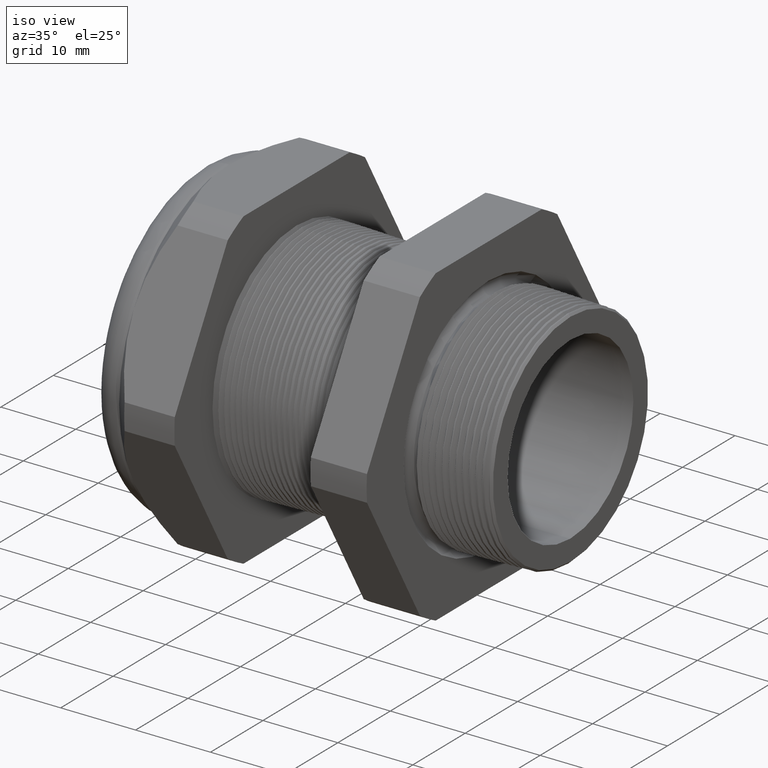
[diagram: clean part render]
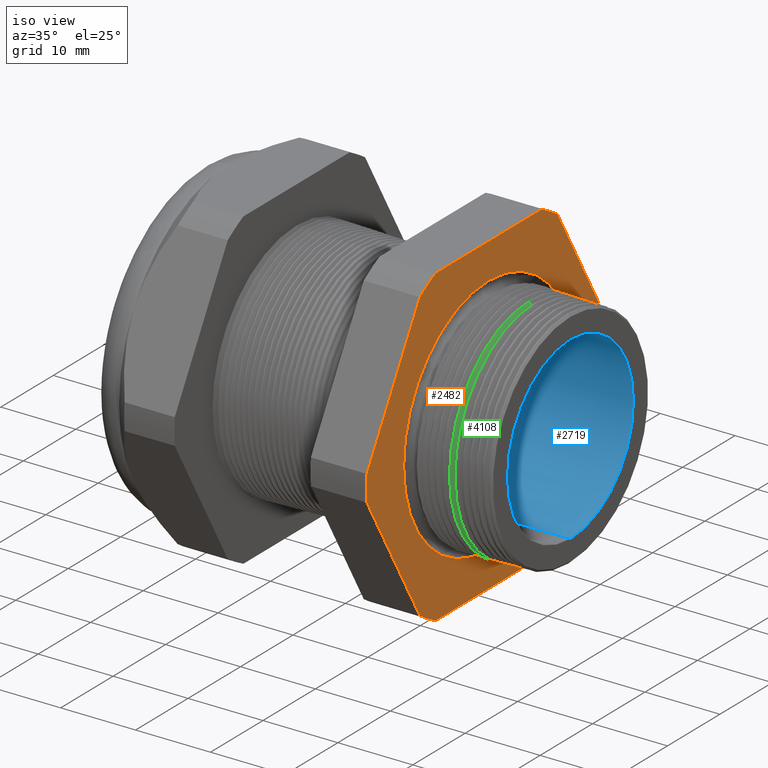
[diagram: same view with three faces highlighted in distinct colors, each labeled with its STEP entity id]
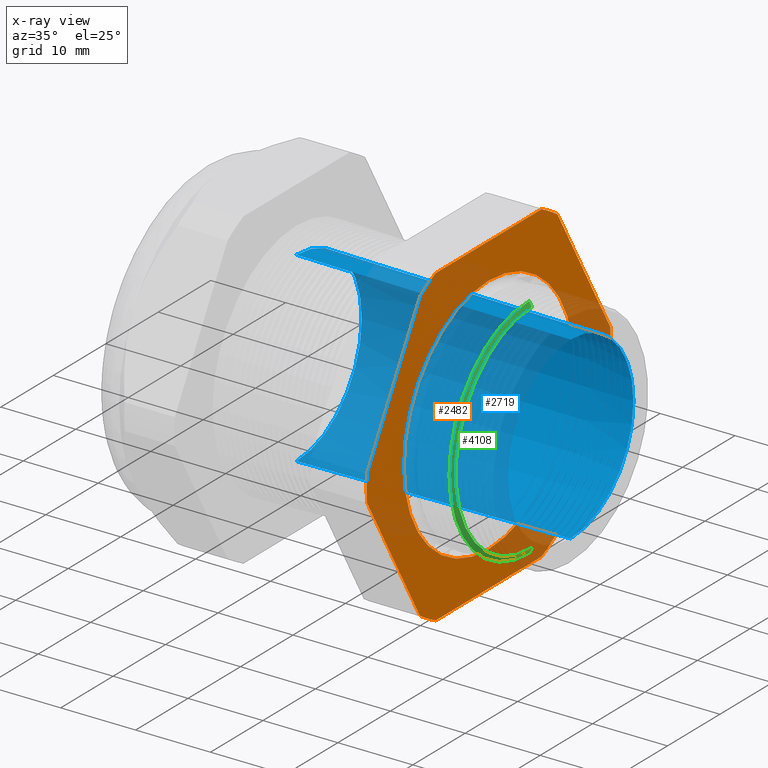
[diagram: x-ray of the same camera — body ghosted, the three highlighted faces saturated]
A machine part, iso view with three faces highlighted in distinct colors.
The next image is the same camera in x-ray (body ghosted, the three faces saturated) — at least one of them is partly hidden behind the body in this view.
Their STEP definitions:

[orange] entity #2482 — the highlighted planar face has unit normal (1, 0, 0).
#2092 = VERTEX_POINT ( 'NONE', #4909 ) ;
#2208 = EDGE_CURVE ( 'NONE', #2210, #2092, #5137, .T. ) ;
#2210 = VERTEX_POINT ( 'NONE', #5133 ) ;
#2472 = ORIENTED_EDGE ( 'NONE', *, *, #2502, .T. ) ;
#2473 = VERTEX_POINT ( 'NONE', #5614 ) ;
#2474 = VERTEX_POINT ( 'NONE', #5672 ) ;
#2475 = EDGE_CURVE ( 'NONE', #2474, #2473, #5671, .T. ) ;
#2476 = ORIENTED_EDGE ( 'NONE', *, *, #2475, .T. ) ;
#2477 = EDGE_LOOP ( 'NONE', ( #2476, #2472, #2501, #2499, #2492, #2491, #2489, #2583, #2519, #2513, #2516, #2505 ) ) ;
#2478 = EDGE_LOOP ( 'NONE', ( #2480, #2481 ) ) ;
#2479 = EDGE_CURVE ( 'NONE', #2092, #2210, #5667, .T. ) ;
#2480 = ORIENTED_EDGE ( 'NONE', *, *, #2479, .F. ) ;
#2481 = ORIENTED_EDGE ( 'NONE', *, *, #2208, .F. ) ;
#2482 = ADVANCED_FACE ( 'NONE', ( #5662, #5661 ), #5659, .T. ) ;
#2486 = EDGE_CURVE ( 'NONE', #2494, #2487, #5650, .T. ) ;
#2487 = VERTEX_POINT ( 'NONE', #5645 ) ;
#2489 = ORIENTED_EDGE ( 'NONE', *, *, #2611, .T. ) ;
#2491 = ORIENTED_EDGE ( 'NONE', *, *, #2486, .T. ) ;
#2492 = ORIENTED_EDGE ( 'NONE', *, *, #2493, .T. ) ;
#2493 = EDGE_CURVE ( 'NONE', #2495, #2494, #5699, .T. ) ;
#2494 = VERTEX_POINT ( 'NONE', #5695 ) ;
#2495 = VERTEX_POINT ( 'NONE', #5694 ) ;
#2496 = EDGE_CURVE ( 'NONE', #2498, #2495, #5692, .T. ) ;
#2497 = EDGE_CURVE ( 'NONE', #2500, #2498, #5693, .T. ) ;
#2498 = VERTEX_POINT ( 'NONE', #5684 ) ;
#2499 = ORIENTED_EDGE ( 'NONE', *, *, #2496, .T. ) ;
#2500 = VERTEX_POINT ( 'NONE', #5683 ) ;
#2501 = ORIENTED_EDGE ( 'NONE', *, *, #2497, .T. ) ;
#2502 = EDGE_CURVE ( 'NONE', #2473, #2500, #5682, .T. ) ;
#2503 = EDGE_CURVE ( 'NONE', #2515, #2504, #5676, .T. ) ;
#2504 = VERTEX_POINT ( 'NONE', #5738 ) ;
#2505 = ORIENTED_EDGE ( 'NONE', *, *, #2712, .T. ) ;
#2513 = ORIENTED_EDGE ( 'NONE', *, *, #2514, .T. ) ;
#2514 = EDGE_CURVE ( 'NONE', #2518, #2515, #5728, .T. ) ;
#2515 = VERTEX_POINT ( 'NONE', #5723 ) ;
#2516 = ORIENTED_EDGE ( 'NONE', *, *, #2503, .T. ) ;
#2518 = VERTEX_POINT ( 'NONE', #5715 ) ;
#2519 = ORIENTED_EDGE ( 'NONE', *, *, #2520, .T. ) ;
#2520 = EDGE_CURVE ( 'NONE', #2521, #2518, #5713, .T. ) ;
#2521 = VERTEX_POINT ( 'NONE', #5709 ) ;
#2580 = VERTEX_POINT ( 'NONE', #5874 ) ;
#2582 = EDGE_CURVE ( 'NONE', #2580, #2521, #5872, .T. ) ;
#2583 = ORIENTED_EDGE ( 'NONE', *, *, #2582, .T. ) ;
#2611 = EDGE_CURVE ( 'NONE', #2487, #2580, #5956, .T. ) ;
#2712 = EDGE_CURVE ( 'NONE', #2504, #2474, #6119, .T. ) ;
#4909 = CARTESIAN_POINT ( 'NONE',  ( -0.3100000000000000000, 0.0000000000000000000, -0.6381849878321532700 ) ) ;
#5133 = CARTESIAN_POINT ( 'NONE',  ( -0.3100000000000000000, 7.815512026125390700E-017, 0.6381849878321532700 ) ) ;
#5134 = DIRECTION ( 'NONE',  ( 0.0000000000000000000, 0.0000000000000000000, -1.000000000000000000 ) ) ;
#5135 = DIRECTION ( 'NONE',  ( 1.000000000000000000, 0.0000000000000000000, 0.0000000000000000000 ) ) ;
#5136 = AXIS2_PLACEMENT_3D ( 'NONE', #5143, #5135, #5134 ) ;
#5137 = CIRCLE ( 'NONE', #5136, 0.6381849878321532700 ) ;
#5143 = CARTESIAN_POINT ( 'NONE',  ( -0.3100000000000000000, 0.0000000000000000000, 0.0000000000000000000 ) ) ;
#5614 = CARTESIAN_POINT ( 'NONE',  ( -0.3100000000000000000, 0.9132000843845193800, -0.06829105636982713000 ) ) ;
#5645 = CARTESIAN_POINT ( 'NONE',  ( -0.3099999999999998300, -0.5157418318598047100, 0.7567089436301734900 ) ) ;
#5646 = DIRECTION ( 'NONE',  ( 0.0000000000000000000, 0.0000000000000000000, -1.000000000000000000 ) ) ;
#5647 = DIRECTION ( 'NONE',  ( 1.000000000000000000, 0.0000000000000000000, 0.0000000000000000000 ) ) ;
#5648 = CARTESIAN_POINT ( 'NONE',  ( -0.3100000000000000000, 0.0000000000000000000, 0.0000000000000000000 ) ) ;
#5649 = AXIS2_PLACEMENT_3D ( 'NONE', #5648, #5647, #5646 ) ;
#5650 = CIRCLE ( 'NONE', #5649, 0.9157500000000000600 ) ;
#5655 = DIRECTION ( 'NONE',  ( 0.0000000000000000000, 0.0000000000000000000, -1.000000000000000000 ) ) ;
#5656 = DIRECTION ( 'NONE',  ( 1.000000000000000000, 0.0000000000000000000, 0.0000000000000000000 ) ) ;
#5657 = CARTESIAN_POINT ( 'NONE',  ( -0.3100000000000000000, 1.649999999999999900, 0.0000000000000000000 ) ) ;
#5658 = AXIS2_PLACEMENT_3D ( 'NONE', #5657, #5656, #5655 ) ;
#5659 = PLANE ( 'NONE',  #5658 ) ;
#5661 = FACE_OUTER_BOUND ( 'NONE', #2477, .T. ) ;
#5662 = FACE_BOUND ( 'NONE', #2478, .T. ) ;
#5663 = DIRECTION ( 'NONE',  ( 0.0000000000000000000, 0.0000000000000000000, -1.000000000000000000 ) ) ;
#5664 = DIRECTION ( 'NONE',  ( 1.000000000000000000, 0.0000000000000000000, 0.0000000000000000000 ) ) ;
#5665 = CARTESIAN_POINT ( 'NONE',  ( -0.3100000000000000000, 0.0000000000000000000, 0.0000000000000000000 ) ) ;
#5666 = AXIS2_PLACEMENT_3D ( 'NONE', #5665, #5664, #5663 ) ;
#5667 = CIRCLE ( 'NONE', #5666, 0.6381849878321532700 ) ;
#5668 = DIRECTION ( 'NONE',  ( 0.0000000000000000000, 0.4999999999999998300, 0.8660254037844388200 ) ) ;
#5669 = VECTOR ( 'NONE', #5668, 39.37007874015748100 ) ;
#5670 = CARTESIAN_POINT ( 'NONE',  ( -0.3100000000000000000, 1.126970958122162100, 0.3019709581221616300 ) ) ;
#5671 = LINE ( 'NONE', #5670, #5669 ) ;
#5672 = CARTESIAN_POINT ( 'NONE',  ( -0.3099999999999998300, 0.5157418318598052700, -0.7567089436301730500 ) ) ;
#5673 = DIRECTION ( 'NONE',  ( 0.0000000000000000000, 1.000000000000000000, 0.0000000000000000000 ) ) ;
#5674 = VECTOR ( 'NONE', #5673, 39.37007874015748100 ) ;
#5675 = CARTESIAN_POINT ( 'NONE',  ( -0.3100000000000000000, 1.649999999999999900, -0.8250000000000000700 ) ) ;
#5676 = LINE ( 'NONE', #5675, #5674 ) ;
#5677 = DIRECTION ( 'NONE',  ( 0.0000000000000000000, 0.0000000000000000000, -1.000000000000000000 ) ) ;
#5679 = DIRECTION ( 'NONE',  ( 1.000000000000000000, 0.0000000000000000000, 0.0000000000000000000 ) ) ;
#5680 = CARTESIAN_POINT ( 'NONE',  ( -0.3100000000000000000, 0.0000000000000000000, 0.0000000000000000000 ) ) ;
#5681 = AXIS2_PLACEMENT_3D ( 'NONE', #5680, #5679, #5677 ) ;
#5682 = CIRCLE ( 'NONE', #5681, 0.9157499999999999500 ) ;
#5683 = CARTESIAN_POINT ( 'NONE',  ( -0.3099999999999998300, 0.9132000843845192700, 0.06829105636982749100 ) ) ;
#5684 = CARTESIAN_POINT ( 'NONE',  ( -0.3099999999999998300, 0.5157418318598050400, 0.7567089436301731600 ) ) ;
#5685 = DIRECTION ( 'NONE',  ( 0.0000000000000000000, -0.5000000000000000000, 0.8660254037844386000 ) ) ;
#5686 = VECTOR ( 'NONE', #5685, 39.37007874015748100 ) ;
#5687 = CARTESIAN_POINT ( 'NONE',  ( -0.3100000000000000000, 1.126970958122162300, -0.3019709581221616300 ) ) ;
#5688 = DIRECTION ( 'NONE',  ( 0.0000000000000000000, 0.0000000000000000000, -1.000000000000000000 ) ) ;
#5689 = DIRECTION ( 'NONE',  ( 1.000000000000000000, 0.0000000000000000000, 0.0000000000000000000 ) ) ;
#5690 = CARTESIAN_POINT ( 'NONE',  ( -0.3100000000000000000, 0.0000000000000000000, 0.0000000000000000000 ) ) ;
#5691 = AXIS2_PLACEMENT_3D ( 'NONE', #5690, #5689, #5688 ) ;
#5692 = CIRCLE ( 'NONE', #5691, 0.9157500000000000600 ) ;
#5693 = LINE ( 'NONE', #5687, #5686 ) ;
#5694 = CARTESIAN_POINT ( 'NONE',  ( -0.3099999999999998300, 0.3974582525247153400, 0.8249999999999998400 ) ) ;
#5695 = CARTESIAN_POINT ( 'NONE',  ( -0.3099999999999998300, -0.3974582525247157800, 0.8249999999999995100 ) ) ;
#5696 = DIRECTION ( 'NONE',  ( 0.0000000000000000000, -1.000000000000000000, 0.0000000000000000000 ) ) ;
#5697 = VECTOR ( 'NONE', #5696, 39.37007874015748100 ) ;
#5698 = CARTESIAN_POINT ( 'NONE',  ( -0.3100000000000000000, 1.649999999999999900, 0.8249999999999998400 ) ) ;
#5699 = LINE ( 'NONE', #5698, #5697 ) ;
#5709 = CARTESIAN_POINT ( 'NONE',  ( -0.3099999999999998300, -0.9132000843845193800, -0.06829105636982590900 ) ) ;
#5710 = DIRECTION ( 'NONE',  ( 0.0000000000000000000, 0.4999999999999998300, -0.8660254037844386000 ) ) ;
#5711 = VECTOR ( 'NONE', #5710, 39.37007874015748900 ) ;
#5712 = CARTESIAN_POINT ( 'NONE',  ( -0.3100000000000000000, -0.3019709581221620100, -1.126970958122161400 ) ) ;
#5713 = LINE ( 'NONE', #5712, #5711 ) ;
#5715 = CARTESIAN_POINT ( 'NONE',  ( -0.3099999999999998300, -0.5157418318598037100, -0.7567089436301741600 ) ) ;
#5723 = CARTESIAN_POINT ( 'NONE',  ( -0.3099999999999998300, -0.3974582525247148400, -0.8250000000000000700 ) ) ;
#5724 = DIRECTION ( 'NONE',  ( 0.0000000000000000000, 0.0000000000000000000, -1.000000000000000000 ) ) ;
#5725 = DIRECTION ( 'NONE',  ( 1.000000000000000000, 0.0000000000000000000, 0.0000000000000000000 ) ) ;
#5726 = CARTESIAN_POINT ( 'NONE',  ( -0.3100000000000000000, 0.0000000000000000000, 0.0000000000000000000 ) ) ;
#5727 = AXIS2_PLACEMENT_3D ( 'NONE', #5726, #5725, #5724 ) ;
#5728 = CIRCLE ( 'NONE', #5727, 0.9157500000000000600 ) ;
#5738 = CARTESIAN_POINT ( 'NONE',  ( -0.3099999999999998300, 0.3974582525247150100, -0.8249999999999999600 ) ) ;
#5868 = DIRECTION ( 'NONE',  ( 0.0000000000000000000, 0.0000000000000000000, -1.000000000000000000 ) ) ;
#5869 = DIRECTION ( 'NONE',  ( 1.000000000000000000, 0.0000000000000000000, 0.0000000000000000000 ) ) ;
#5870 = CARTESIAN_POINT ( 'NONE',  ( -0.3100000000000000000, 0.0000000000000000000, 0.0000000000000000000 ) ) ;
#5871 = AXIS2_PLACEMENT_3D ( 'NONE', #5870, #5869, #5868 ) ;
#5872 = CIRCLE ( 'NONE', #5871, 0.9157500000000000600 ) ;
#5874 = CARTESIAN_POINT ( 'NONE',  ( -0.3099999999999998300, -0.9132000843845194900, 0.06829105636982570100 ) ) ;
#5953 = DIRECTION ( 'NONE',  ( 0.0000000000000000000, -0.4999999999999998300, -0.8660254037844388200 ) ) ;
#5954 = VECTOR ( 'NONE', #5953, 39.37007874015748100 ) ;
#5955 = CARTESIAN_POINT ( 'NONE',  ( -0.3100000000000000000, -0.3019709581221622900, 1.126970958122161400 ) ) ;
#5956 = LINE ( 'NONE', #5955, #5954 ) ;
#6116 = DIRECTION ( 'NONE',  ( 0.0000000000000000000, 0.0000000000000000000, -1.000000000000000000 ) ) ;
#6117 = DIRECTION ( 'NONE',  ( 1.000000000000000000, 0.0000000000000000000, 0.0000000000000000000 ) ) ;
#6118 = AXIS2_PLACEMENT_3D ( 'NONE', #6123, #6117, #6116 ) ;
#6119 = CIRCLE ( 'NONE', #6118, 0.9157500000000000600 ) ;
#6123 = CARTESIAN_POINT ( 'NONE',  ( -0.3100000000000000000, 0.0000000000000000000, 0.0000000000000000000 ) ) ;

[blue] entity #2719 — the highlighted conical surface has half-angle 0.705 deg.
#91 = CARTESIAN_POINT ( 'NONE',  ( 0.1200000000000000400, 0.0000000000000000000, 0.4722840254060285400 ) ) ;
#129 = CARTESIAN_POINT ( 'NONE',  ( -1.320314960629921200, 6.000769315822029800E-017, -0.4899999999999999900 ) ) ;
#130 = CARTESIAN_POINT ( 'NONE',  ( -1.320314960629921200, 0.0000000000000000000, 0.4899999999999999900 ) ) ;
#148 = CARTESIAN_POINT ( 'NONE',  ( 0.1200000000000000400, 5.892290257920615800E-017, -0.4722840254060285400 ) ) ;
#155 = DIRECTION ( 'NONE',  ( -0.9999243627234416500, 0.0000000000000000000, 0.01229913948693142600 ) ) ;
#156 = VECTOR ( 'NONE', #155, 39.37007874015748900 ) ;
#157 = CARTESIAN_POINT ( 'NONE',  ( -1.320314960629921200, 0.0000000000000000000, 0.4899999999999999900 ) ) ;
#158 = LINE ( 'NONE', #157, #156 ) ;
#159 = DIRECTION ( 'NONE',  ( -0.9999243627234416500, 1.506210180493738900E-018, -0.01229913948693142600 ) ) ;
#160 = VECTOR ( 'NONE', #159, 39.37007874015748900 ) ;
#161 = CARTESIAN_POINT ( 'NONE',  ( -1.320314960629921200, 6.000769315822029800E-017, -0.4899999999999999900 ) ) ;
#162 = LINE ( 'NONE', #161, #160 ) ;
#2713 = ORIENTED_EDGE ( 'NONE', *, *, #2714, .F. ) ;
#2714 = EDGE_CURVE ( 'NONE', #3391, #3389, #6115, .T. ) ;
#2715 = ORIENTED_EDGE ( 'NONE', *, *, #3410, .T. ) ;
#2716 = ORIENTED_EDGE ( 'NONE', *, *, #3409, .F. ) ;
#2717 = ORIENTED_EDGE ( 'NONE', *, *, #2720, .T. ) ;
#2718 = EDGE_LOOP ( 'NONE', ( #2716, #2717, #2715, #2713 ) ) ;
#2719 = ADVANCED_FACE ( 'NONE', ( #6174 ), #6167, .F. ) ;
#2720 = EDGE_CURVE ( 'NONE', #3378, #3376, #6163, .T. ) ;
#3376 = VERTEX_POINT ( 'NONE', #91 ) ;
#3378 = VERTEX_POINT ( 'NONE', #148 ) ;
#3389 = VERTEX_POINT ( 'NONE', #130 ) ;
#3391 = VERTEX_POINT ( 'NONE', #129 ) ;
#3409 = EDGE_CURVE ( 'NONE', #3378, #3391, #162, .T. ) ;
#3410 = EDGE_CURVE ( 'NONE', #3376, #3389, #158, .T. ) ;
#6115 = CIRCLE ( 'NONE', #6173, 0.4899999999999999900 ) ;
#6160 = DIRECTION ( 'NONE',  ( 0.0000000000000000000, 0.0000000000000000000, -1.000000000000000000 ) ) ;
#6161 = DIRECTION ( 'NONE',  ( 1.000000000000000000, 0.0000000000000000000, 0.0000000000000000000 ) ) ;
#6162 = AXIS2_PLACEMENT_3D ( 'NONE', #6168, #6161, #6160 ) ;
#6163 = CIRCLE ( 'NONE', #6162, 0.4722840254060285400 ) ;
#6164 = DIRECTION ( 'NONE',  ( 0.0000000000000000000, 0.0000000000000000000, 1.000000000000000000 ) ) ;
#6165 = DIRECTION ( 'NONE',  ( -1.000000000000000000, 0.0000000000000000000, 0.0000000000000000000 ) ) ;
#6166 = AXIS2_PLACEMENT_3D ( 'NONE', #6169, #6165, #6164 ) ;
#6167 = CONICAL_SURFACE ( 'NONE', #6166, 0.4899999999999999900, 0.01229944958745177900 ) ;
#6168 = CARTESIAN_POINT ( 'NONE',  ( 0.1200000000000000400, 0.0000000000000000000, 0.0000000000000000000 ) ) ;
#6169 = CARTESIAN_POINT ( 'NONE',  ( -1.320314960629921200, 0.0000000000000000000, 0.0000000000000000000 ) ) ;
#6170 = DIRECTION ( 'NONE',  ( 0.0000000000000000000, 0.0000000000000000000, -1.000000000000000000 ) ) ;
#6171 = DIRECTION ( 'NONE',  ( 1.000000000000000000, 0.0000000000000000000, 0.0000000000000000000 ) ) ;
#6172 = CARTESIAN_POINT ( 'NONE',  ( -1.320314960629921200, 0.0000000000000000000, 0.0000000000000000000 ) ) ;
#6173 = AXIS2_PLACEMENT_3D ( 'NONE', #6172, #6171, #6170 ) ;
#6174 = FACE_OUTER_BOUND ( 'NONE', #2718, .T. ) ;

[green] entity #4108 — the highlighted conical surface has half-angle 61.5 deg.
#1220 = DIRECTION ( 'NONE',  ( 0.0000000000000000000, 0.0000000000000000000, -1.000000000000000000 ) ) ;
#1221 = DIRECTION ( 'NONE',  ( 1.000000000000000000, 0.0000000000000000000, 0.0000000000000000000 ) ) ;
#1222 = CARTESIAN_POINT ( 'NONE',  ( -0.08347073567907506400, 0.0000000000000000000, 0.0000000000000000000 ) ) ;
#1223 = AXIS2_PLACEMENT_3D ( 'NONE', #1222, #1221, #1220 ) ;
#1224 = DIRECTION ( 'NONE',  ( 0.0000000000000000000, 0.0000000000000000000, 1.000000000000000000 ) ) ;
#1225 = DIRECTION ( 'NONE',  ( -1.000000000000000000, 0.0000000000000000000, 0.0000000000000000000 ) ) ;
#1226 = CARTESIAN_POINT ( 'NONE',  ( -0.09999999999999982500, 0.0000000000000000000, 0.0000000000000000000 ) ) ;
#1227 = AXIS2_PLACEMENT_3D ( 'NONE', #1226, #1225, #1224 ) ;
#1228 = CIRCLE ( 'NONE', #1223, 0.5731008538869457600 ) ;
#1230 = CONICAL_SURFACE ( 'NONE', #1227, 0.6035439716807757800, 1.073377489976501800 ) ;
#1231 = FACE_OUTER_BOUND ( 'NONE', #4109, .T. ) ;
#1743 = EDGE_CURVE ( 'NONE', #1854, #1754, #4257, .T. ) ;
#1748 = VERTEX_POINT ( 'NONE', #4305 ) ;
#1750 = EDGE_CURVE ( 'NONE', #1855, #1748, #4304, .T. ) ;
#1754 = VERTEX_POINT ( 'NONE', #4299 ) ;
#1854 = VERTEX_POINT ( 'NONE', #4486 ) ;
#1855 = VERTEX_POINT ( 'NONE', #4485 ) ;
#3238 = EDGE_CURVE ( 'NONE', #1748, #1754, #7182, .T. ) ;
#4039 = ORIENTED_EDGE ( 'NONE', *, *, #3238, .T. ) ;
#4108 = ADVANCED_FACE ( 'NONE', ( #1231 ), #1230, .T. ) ;
#4109 = EDGE_LOOP ( 'NONE', ( #4110, #4111, #4113, #4039 ) ) ;
#4110 = ORIENTED_EDGE ( 'NONE', *, *, #1743, .F. ) ;
#4111 = ORIENTED_EDGE ( 'NONE', *, *, #4112, .F. ) ;
#4112 = EDGE_CURVE ( 'NONE', #1855, #1854, #1228, .T. ) ;
#4113 = ORIENTED_EDGE ( 'NONE', *, *, #1750, .T. ) ;
#4250 = DIRECTION ( 'NONE',  ( -0.4771587602596179000, 1.076240564057388100E-016, -0.8788171126619600500 ) ) ;
#4251 = VECTOR ( 'NONE', #4250, 39.37007874015748900 ) ;
#4252 = CARTESIAN_POINT ( 'NONE',  ( -0.09999999999999982500, 7.391281930635429700E-017, -0.6035439716807757800 ) ) ;
#4257 = LINE ( 'NONE', #4252, #4251 ) ;
#4299 = CARTESIAN_POINT ( 'NONE',  ( -0.09697120011612862800, 7.323955048079450300E-017, -0.5979656162350404100 ) ) ;
#4301 = DIRECTION ( 'NONE',  ( -0.4771587602596179000, 0.0000000000000000000, 0.8788171126619600500 ) ) ;
#4302 = VECTOR ( 'NONE', #4301, 39.37007874015748900 ) ;
#4303 = CARTESIAN_POINT ( 'NONE',  ( -0.09999999999999982500, 0.0000000000000000000, 0.6035439716807757800 ) ) ;
#4304 = LINE ( 'NONE', #4303, #4302 ) ;
#4305 = CARTESIAN_POINT ( 'NONE',  ( -0.09697120011612862800, 0.0000000000000000000, 0.5979656162350404100 ) ) ;
#4485 = CARTESIAN_POINT ( 'NONE',  ( -0.08347073567907506400, 0.0000000000000000000, 0.5731008538869457600 ) ) ;
#4486 = CARTESIAN_POINT ( 'NONE',  ( -0.08347073567907506400, 7.170714021118400100E-017, -0.5731008538869457600 ) ) ;
#7178 = DIRECTION ( 'NONE',  ( 0.0000000000000000000, 0.0000000000000000000, 1.000000000000000000 ) ) ;
#7179 = DIRECTION ( 'NONE',  ( 1.000000000000000000, 0.0000000000000000000, 0.0000000000000000000 ) ) ;
#7180 = CARTESIAN_POINT ( 'NONE',  ( -0.09697120011612862800, 0.0000000000000000000, 0.0000000000000000000 ) ) ;
#7181 = AXIS2_PLACEMENT_3D ( 'NONE', #7180, #7179, #7178 ) ;
#7182 = CIRCLE ( 'NONE', #7181, 0.5979656162350404100 ) ;